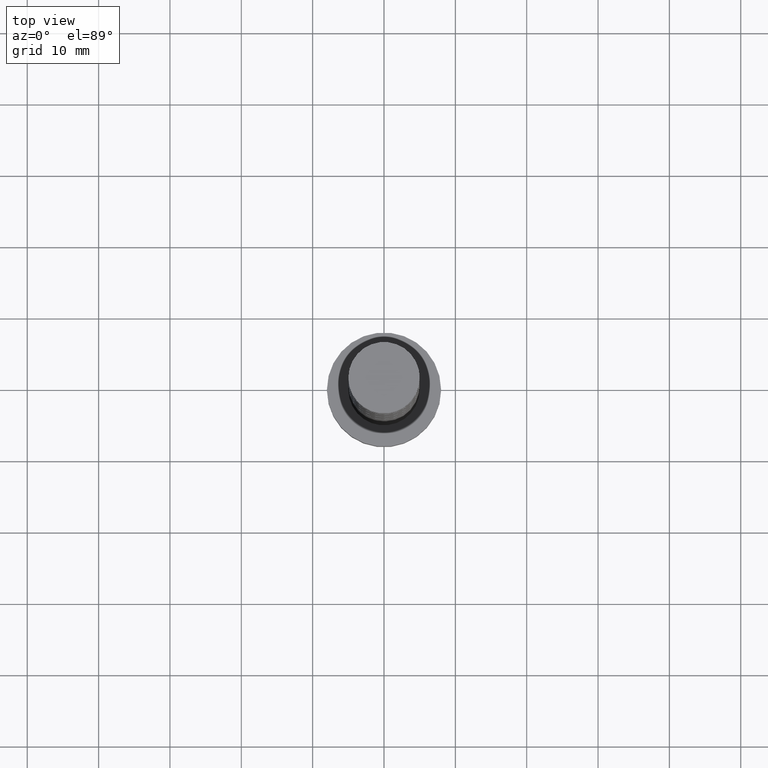
[diagram: clean part render]
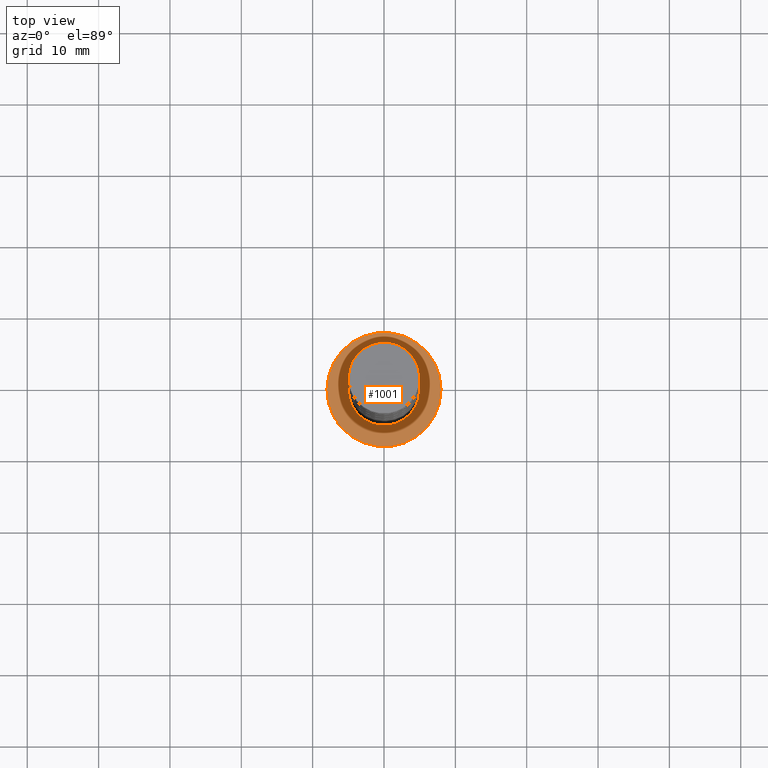
[diagram: same view with one face highlighted and labeled with its STEP entity id]
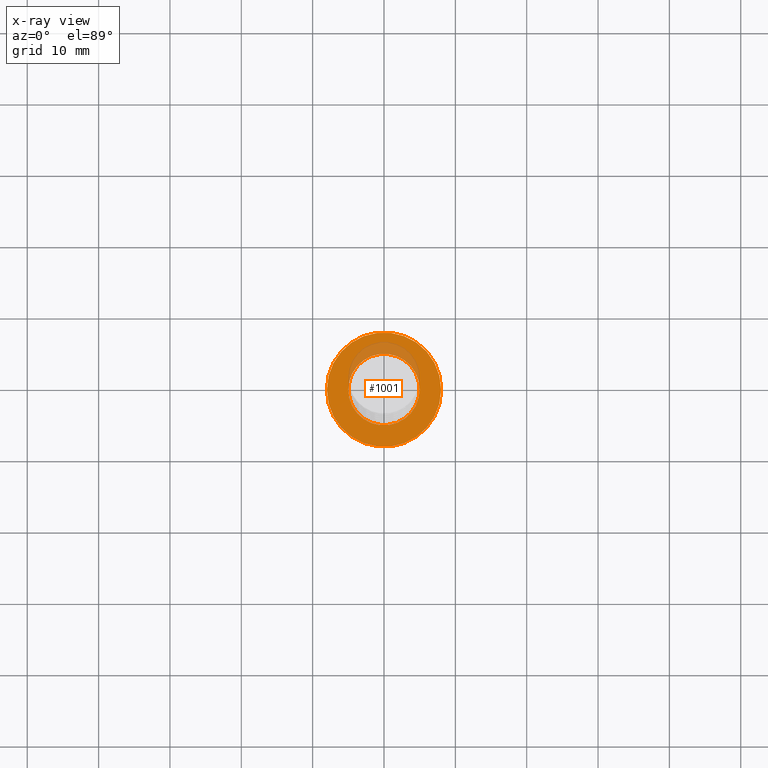
[diagram: x-ray of the same camera — body ghosted, the highlighted face saturated]
A machine part, top view. The second image highlights one B-rep face of the part: STEP entity #1001.
The next image is the same camera in x-ray: the body ghosted, the highlighted face saturated — about 14% of this face is hidden behind the body in this view.
In plain terms, the highlighted planar face has unit normal (0, 0, 1).
Its self-contained STEP definition (entity closure, byte-faithful):
#63 = DIRECTION ( 'NONE',  ( 0.000000000000000000, 0.000000000000000000, 1.000000000000000000 ) ) ;
#67 = DIRECTION ( 'NONE',  ( 0.000000000000000000, 0.000000000000000000, 1.000000000000000000 ) ) ;
#80 = CARTESIAN_POINT ( 'NONE',  ( 0.000000000000000000, 0.000000000000000000, 5.000000000000000000 ) ) ;
#86 = FACE_BOUND ( 'NONE', #1148, .T. ) ;
#101 = DIRECTION ( 'NONE',  ( 1.000000000000000000, 0.000000000000000000, -0.000000000000000000 ) ) ;
#115 = ORIENTED_EDGE ( 'NONE', *, *, #799, .F. ) ;
#201 = CIRCLE ( 'NONE', #820, 5.000000000000000000 ) ;
#253 = CARTESIAN_POINT ( 'NONE',  ( -5.000000000000000000, 0.000000000000000000, 5.000000000000000000 ) ) ;
#269 = AXIS2_PLACEMENT_3D ( 'NONE', #433, #816, #101 ) ;
#283 = DIRECTION ( 'NONE',  ( 1.000000000000000000, 0.000000000000000000, 0.000000000000000000 ) ) ;
#338 = FACE_OUTER_BOUND ( 'NONE', #1095, .T. ) ;
#384 = CARTESIAN_POINT ( 'NONE',  ( 8.000000000000000000, 9.797174393178825657E-16, 5.000000000000000000 ) ) ;
#400 = CARTESIAN_POINT ( 'NONE',  ( -8.000000000000000000, 0.000000000000000000, 5.000000000000000000 ) ) ;
#423 = DIRECTION ( 'NONE',  ( 1.000000000000000000, 0.000000000000000000, 0.000000000000000000 ) ) ;
#433 = CARTESIAN_POINT ( 'NONE',  ( 0.000000000000000000, 0.000000000000000000, 5.000000000000000000 ) ) ;
#498 = ORIENTED_EDGE ( 'NONE', *, *, #550, .F. ) ;
#543 = DIRECTION ( 'NONE',  ( 0.000000000000000000, 0.000000000000000000, 1.000000000000000000 ) ) ;
#546 = CIRCLE ( 'NONE', #1046, 5.000000000000000000 ) ;
#550 = EDGE_CURVE ( 'NONE', #1248, #574, #201, .T. ) ;
#572 = CIRCLE ( 'NONE', #921, 8.000000000000000000 ) ;
#574 = VERTEX_POINT ( 'NONE', #253 ) ;
#599 = DIRECTION ( 'NONE',  ( 1.000000000000000000, 0.000000000000000000, 0.000000000000000000 ) ) ;
#683 = VERTEX_POINT ( 'NONE', #400 ) ;
#695 = EDGE_CURVE ( 'NONE', #806, #683, #572, .T. ) ;
#697 = AXIS2_PLACEMENT_3D ( 'NONE', #1336, #63, #423 ) ;
#718 = CIRCLE ( 'NONE', #697, 8.000000000000000000 ) ;
#796 = ORIENTED_EDGE ( 'NONE', *, *, #695, .T. ) ;
#799 = EDGE_CURVE ( 'NONE', #574, #1248, #546, .T. ) ;
#806 = VERTEX_POINT ( 'NONE', #384 ) ;
#816 = DIRECTION ( 'NONE',  ( 0.000000000000000000, 0.000000000000000000, 1.000000000000000000 ) ) ;
#820 = AXIS2_PLACEMENT_3D ( 'NONE', #1420, #1411, #599 ) ;
#839 = ORIENTED_EDGE ( 'NONE', *, *, #1309, .T. ) ;
#921 = AXIS2_PLACEMENT_3D ( 'NONE', #1237, #67, #283 ) ;
#1001 = ADVANCED_FACE ( 'NONE', ( #86, #338 ), #1471, .T. ) ;
#1015 = DIRECTION ( 'NONE',  ( 1.000000000000000000, 0.000000000000000000, 0.000000000000000000 ) ) ;
#1031 = CARTESIAN_POINT ( 'NONE',  ( 5.000000000000000000, 6.123233995736766282E-16, 5.000000000000000000 ) ) ;
#1046 = AXIS2_PLACEMENT_3D ( 'NONE', #80, #543, #1015 ) ;
#1095 = EDGE_LOOP ( 'NONE', ( #839, #796 ) ) ;
#1148 = EDGE_LOOP ( 'NONE', ( #115, #498 ) ) ;
#1237 = CARTESIAN_POINT ( 'NONE',  ( 0.000000000000000000, 0.000000000000000000, 5.000000000000000000 ) ) ;
#1248 = VERTEX_POINT ( 'NONE', #1031 ) ;
#1309 = EDGE_CURVE ( 'NONE', #683, #806, #718, .T. ) ;
#1336 = CARTESIAN_POINT ( 'NONE',  ( 0.000000000000000000, 0.000000000000000000, 5.000000000000000000 ) ) ;
#1411 = DIRECTION ( 'NONE',  ( 0.000000000000000000, 0.000000000000000000, 1.000000000000000000 ) ) ;
#1420 = CARTESIAN_POINT ( 'NONE',  ( 0.000000000000000000, 0.000000000000000000, 5.000000000000000000 ) ) ;
#1471 = PLANE ( 'NONE',  #269 ) ;